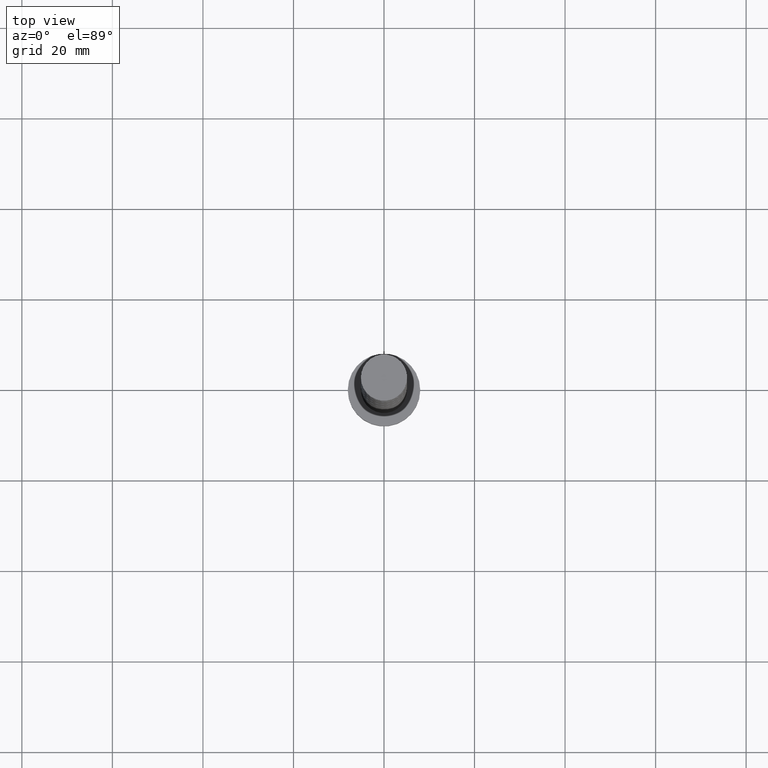
[diagram: clean part render]
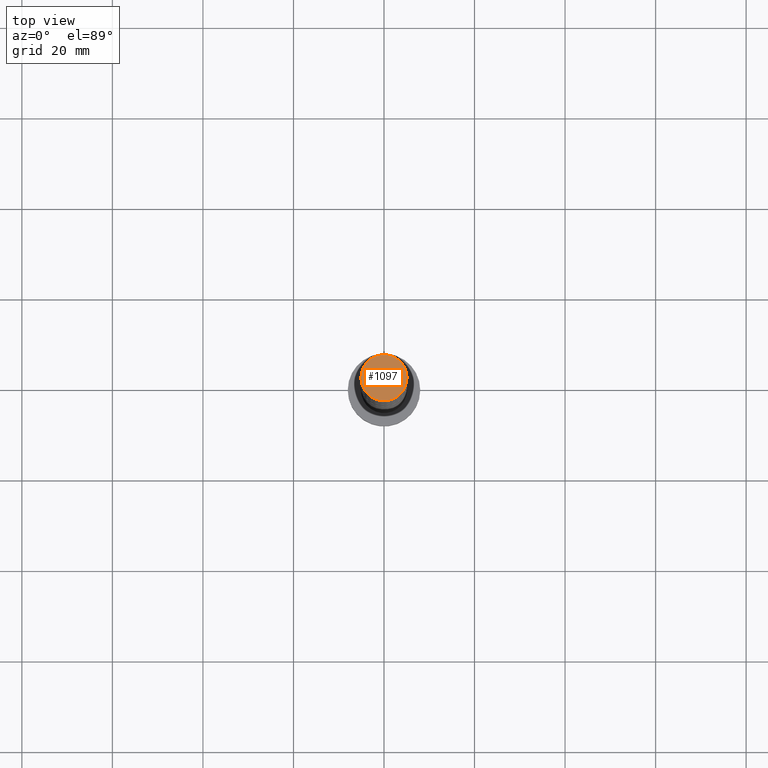
[diagram: same view with one face highlighted and labeled with its STEP entity id]
A machine part, top view. The second image highlights one B-rep face of the part: STEP entity #1097.
In plain terms, the highlighted planar face has unit normal (0, 0, 1).
Its self-contained STEP definition (entity closure, byte-faithful):
#22 = CIRCLE ( 'NONE', #1582, 5.099999999999999645 ) ;
#26 = EDGE_CURVE ( 'NONE', #690, #1326, #578, .T. ) ;
#367 = PLANE ( 'NONE',  #615 ) ;
#368 = EDGE_CURVE ( 'NONE', #1326, #690, #22, .T. ) ;
#472 = CARTESIAN_POINT ( 'NONE',  ( 0.000000000000000000, 0.000000000000000000, 160.0000000000000000 ) ) ;
#489 = DIRECTION ( 'NONE',  ( 0.000000000000000000, 0.000000000000000000, 1.000000000000000000 ) ) ;
#578 = CIRCLE ( 'NONE', #1568, 5.099999999999999645 ) ;
#615 = AXIS2_PLACEMENT_3D ( 'NONE', #1235, #1498, #968 ) ;
#658 = CARTESIAN_POINT ( 'NONE',  ( 5.099999999999999645, 6.245698675651500839E-16, 160.0000000000000000 ) ) ;
#690 = VERTEX_POINT ( 'NONE', #1511 ) ;
#733 = FACE_OUTER_BOUND ( 'NONE', #972, .T. ) ;
#735 = DIRECTION ( 'NONE',  ( 0.000000000000000000, 0.000000000000000000, 1.000000000000000000 ) ) ;
#755 = ORIENTED_EDGE ( 'NONE', *, *, #26, .T. ) ;
#768 = ORIENTED_EDGE ( 'NONE', *, *, #368, .T. ) ;
#837 = DIRECTION ( 'NONE',  ( 1.000000000000000000, 0.000000000000000000, 0.000000000000000000 ) ) ;
#968 = DIRECTION ( 'NONE',  ( 1.000000000000000000, 0.000000000000000000, -0.000000000000000000 ) ) ;
#972 = EDGE_LOOP ( 'NONE', ( #755, #768 ) ) ;
#1085 = CARTESIAN_POINT ( 'NONE',  ( 0.000000000000000000, 0.000000000000000000, 160.0000000000000000 ) ) ;
#1097 = ADVANCED_FACE ( 'NONE', ( #733 ), #367, .T. ) ;
#1136 = DIRECTION ( 'NONE',  ( 1.000000000000000000, 0.000000000000000000, 0.000000000000000000 ) ) ;
#1235 = CARTESIAN_POINT ( 'NONE',  ( 0.000000000000000000, 0.000000000000000000, 160.0000000000000000 ) ) ;
#1326 = VERTEX_POINT ( 'NONE', #658 ) ;
#1498 = DIRECTION ( 'NONE',  ( 0.000000000000000000, 0.000000000000000000, 1.000000000000000000 ) ) ;
#1511 = CARTESIAN_POINT ( 'NONE',  ( -5.099999999999999645, 0.000000000000000000, 160.0000000000000000 ) ) ;
#1568 = AXIS2_PLACEMENT_3D ( 'NONE', #1085, #735, #837 ) ;
#1582 = AXIS2_PLACEMENT_3D ( 'NONE', #472, #489, #1136 ) ;